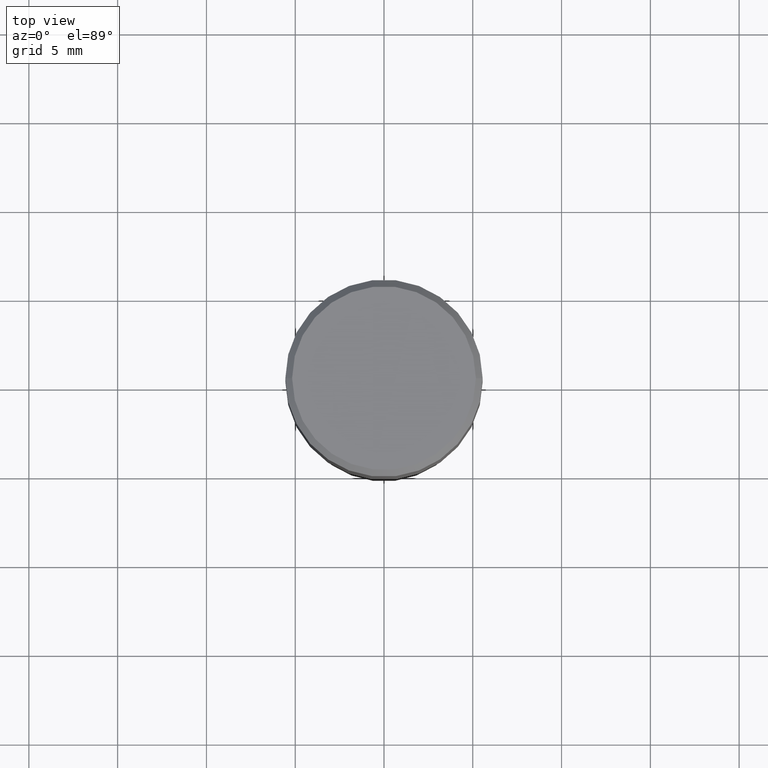
[diagram: clean part render]
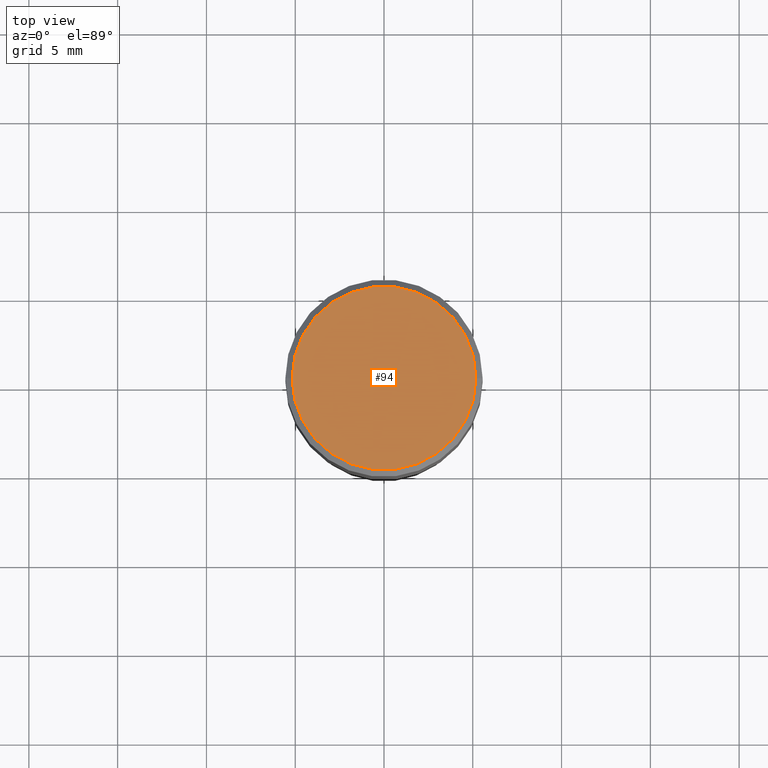
[diagram: same view with one face highlighted and labeled with its STEP entity id]
A machine part, top view. The second image highlights one B-rep face of the part: STEP entity #94.
In plain terms, the highlighted planar face has unit normal (0, -0, -1).
Its self-contained STEP definition (entity closure, byte-faithful):
#22 = EDGE_LOOP ( 'NONE', ( #398, #429 ) ) ;
#58 = PLANE ( 'NONE',  #142 ) ;
#94 = ADVANCED_FACE ( 'NONE', ( #246 ), #58, .F. ) ;
#128 = EDGE_CURVE ( 'NONE', #450, #427, #424, .T. ) ;
#142 = AXIS2_PLACEMENT_3D ( 'NONE', #448, #213, #412 ) ;
#175 = DIRECTION ( 'NONE',  ( -2.445468806185136597E-29, 3.491481338843145583E-15, 1.000000000000000000 ) ) ;
#189 = CIRCLE ( 'NONE', #295, 0.2037499999999999867 ) ;
#195 = DIRECTION ( 'NONE',  ( 1.000000000000000000, -6.982962677686266711E-15, 4.875065411617369217E-29 ) ) ;
#206 = CARTESIAN_POINT ( 'NONE',  ( 0.2037499999999999867, -1.475466312070559275E-15, 1.060151966214670170E-16 ) ) ;
#213 = DIRECTION ( 'NONE',  ( 2.438088387897960049E-29, -3.491481338843145188E-15, -1.000000000000000000 ) ) ;
#224 = CARTESIAN_POINT ( 'NONE',  ( -0.2037499999999999867, 1.448964755619900421E-15, 1.060151966214468518E-16 ) ) ;
#246 = FACE_OUTER_BOUND ( 'NONE', #22, .T. ) ;
#295 = AXIS2_PLACEMENT_3D ( 'NONE', #296, #426, #195 ) ;
#296 = CARTESIAN_POINT ( 'NONE',  ( -2.592568563193567003E-45, 3.701500806376036554E-31, 1.060151966214568974E-16 ) ) ;
#331 = AXIS2_PLACEMENT_3D ( 'NONE', #352, #175, #380 ) ;
#352 = CARTESIAN_POINT ( 'NONE',  ( -2.592568563193567003E-45, 3.701500806376036554E-31, 1.060151966214568974E-16 ) ) ;
#376 = EDGE_CURVE ( 'NONE', #427, #450, #189, .T. ) ;
#380 = DIRECTION ( 'NONE',  ( 1.000000000000000000, -6.982962677686266711E-15, 4.875065411617369217E-29 ) ) ;
#398 = ORIENTED_EDGE ( 'NONE', *, *, #128, .T. ) ;
#412 = DIRECTION ( 'NONE',  ( -1.000000000000000000, 6.982962677686265922E-15, -4.876176775795935793E-29 ) ) ;
#424 = CIRCLE ( 'NONE', #331, 0.2037499999999999867 ) ;
#426 = DIRECTION ( 'NONE',  ( -2.445468806185136597E-29, 3.491481338843145583E-15, 1.000000000000000000 ) ) ;
#427 = VERTEX_POINT ( 'NONE', #206 ) ;
#429 = ORIENTED_EDGE ( 'NONE', *, *, #376, .T. ) ;
#448 = CARTESIAN_POINT ( 'NONE',  ( 1.422778645578576487E-15, 0.2037499999999999867, -6.583817244785623957E-16 ) ) ;
#450 = VERTEX_POINT ( 'NONE', #224 ) ;